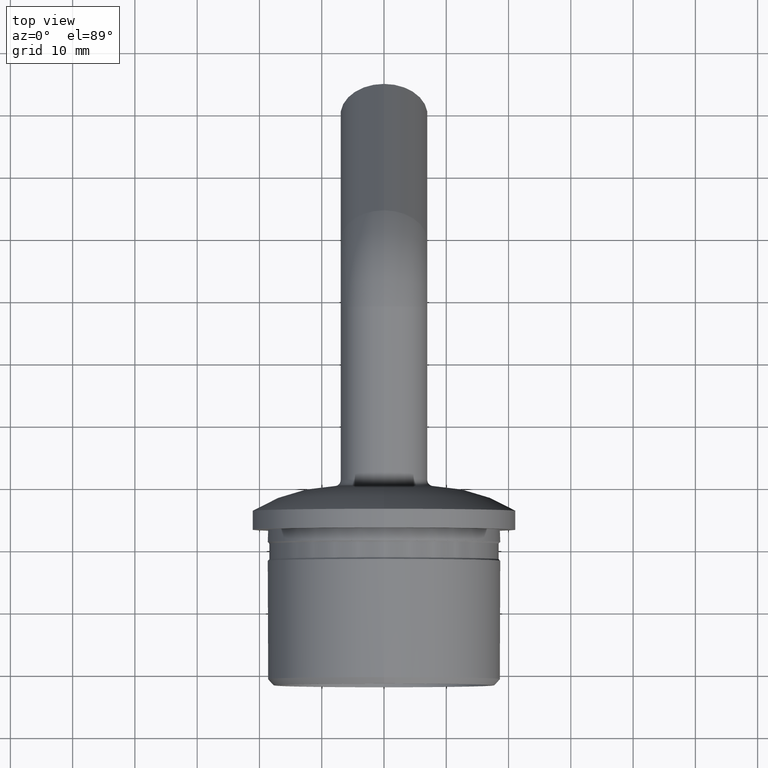
[diagram: clean part render]
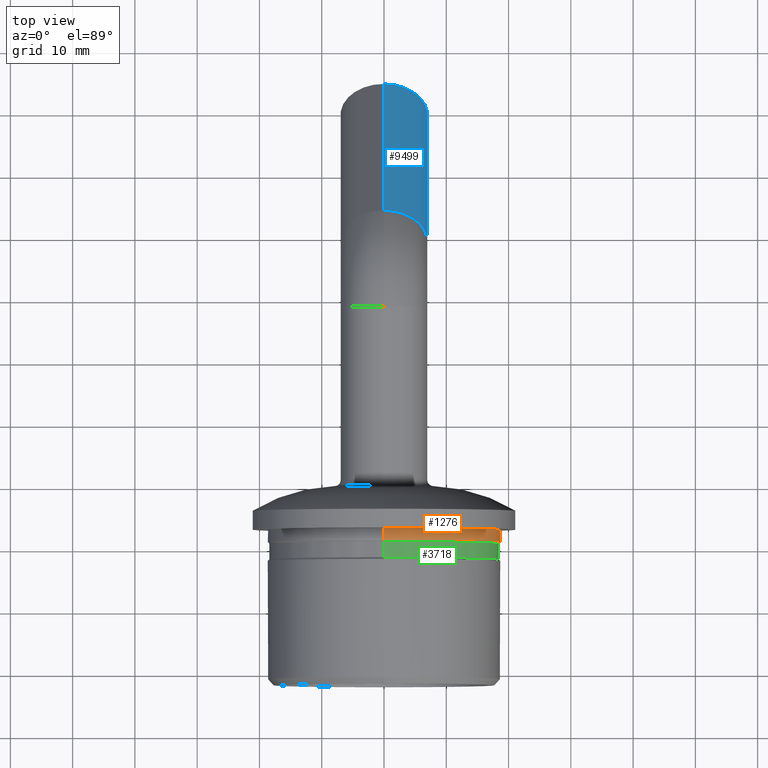
[diagram: same view with three faces highlighted in distinct colors, each labeled with its STEP entity id]
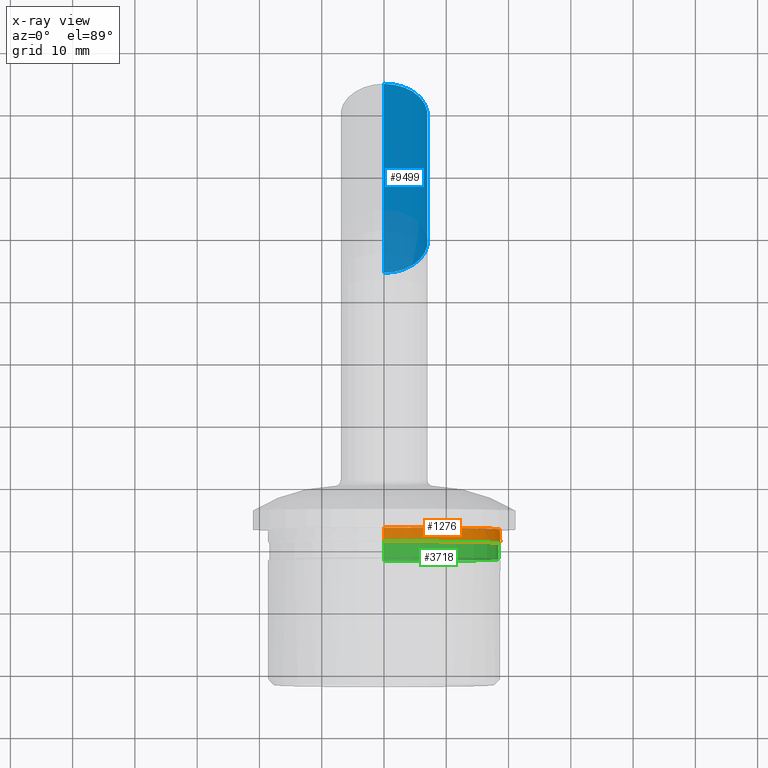
[diagram: x-ray of the same camera — body ghosted, the three highlighted faces saturated]
A machine part, top view with three faces highlighted in distinct colors.
The next image is the same camera in x-ray (body ghosted, the three faces saturated) — at least one of them is partly hidden behind the body in this view.
Their STEP definitions:

[orange] entity #1276 — the highlighted cylindrical surface (partial cylindrical patch) has radius 18.7 mm, axis along (-0, 1, 0).
#802 = DIRECTION ( 'NONE',  ( 0.000000000000000000, 9.276596128218218622E-17, 1.000000000000000000 ) ) ;
#906 = CARTESIAN_POINT ( 'NONE',  ( 0.000000000000000000, -8.999999999999992895, 4.723637653854072254E-16 ) ) ;
#1276 = ADVANCED_FACE ( 'NONE', ( #1738 ), #4572, .T. ) ;
#1674 = VERTEX_POINT ( 'NONE', #11366 ) ;
#1738 = FACE_OUTER_BOUND ( 'NONE', #9353, .T. ) ;
#1954 = DIRECTION ( 'NONE',  ( 0.000000000000000000, -1.391489419232733040E-16, 1.000000000000000000 ) ) ;
#2594 = CARTESIAN_POINT ( 'NONE',  ( 2.290089514405550505E-15, -32.00000000000000000, -18.70000000000000284 ) ) ;
#3051 = DIRECTION ( 'NONE',  ( 0.000000000000000000, -1.000000000000000000, -1.224646799147353207E-16 ) ) ;
#4394 = DIRECTION ( 'NONE',  ( -0.000000000000000000, 1.000000000000000000, -5.248486282060084733E-17 ) ) ;
#4440 = CARTESIAN_POINT ( 'NONE',  ( 0.000000000000000000, -7.000000000000001776, 18.69999999999999929 ) ) ;
#4572 = CYLINDRICAL_SURFACE ( 'NONE', #5643, 18.69999999999999929 ) ;
#4647 = CARTESIAN_POINT ( 'NONE',  ( 0.000000000000000000, -32.00000000000000000, -3.918869757271531052E-15 ) ) ;
#5008 = EDGE_CURVE ( 'NONE', #11975, #8966, #7193, .T. ) ;
#5343 = EDGE_CURVE ( 'NONE', #1674, #14453, #5846, .T. ) ;
#5442 = ORIENTED_EDGE ( 'NONE', *, *, #7865, .T. ) ;
#5643 = AXIS2_PLACEMENT_3D ( 'NONE', #4647, #14436, #9577 ) ;
#5846 = CIRCLE ( 'NONE', #9908, 18.69999999999999929 ) ;
#6888 = CARTESIAN_POINT ( 'NONE',  ( 2.290089514405550899E-15, -8.999999999999994671, -18.70000000000000284 ) ) ;
#7193 = CIRCLE ( 'NONE', #15183, 18.70000000000000284 ) ;
#7313 = CARTESIAN_POINT ( 'NONE',  ( 0.000000000000000000, -32.00000000000000000, 18.69999999999999574 ) ) ;
#7607 = ORIENTED_EDGE ( 'NONE', *, *, #5008, .T. ) ;
#7731 = ORIENTED_EDGE ( 'NONE', *, *, #5343, .T. ) ;
#7865 = EDGE_CURVE ( 'NONE', #8966, #1674, #13038, .T. ) ;
#8531 = ORIENTED_EDGE ( 'NONE', *, *, #13023, .F. ) ;
#8551 = CARTESIAN_POINT ( 'NONE',  ( 0.000000000000000000, -8.999999999999991118, 18.70000000000000284 ) ) ;
#8966 = VERTEX_POINT ( 'NONE', #6888 ) ;
#9353 = EDGE_LOOP ( 'NONE', ( #7607, #5442, #7731, #8531 ) ) ;
#9577 = DIRECTION ( 'NONE',  ( 0.000000000000000000, 0.000000000000000000, 1.000000000000000000 ) ) ;
#9843 = VECTOR ( 'NONE', #11325, 1000.000000000000000 ) ;
#9908 = AXIS2_PLACEMENT_3D ( 'NONE', #13911, #3051, #1954 ) ;
#11325 = DIRECTION ( 'NONE',  ( -0.000000000000000000, 1.000000000000000000, 1.224646799147353207E-16 ) ) ;
#11366 = CARTESIAN_POINT ( 'NONE',  ( 2.290089514405550505E-15, -6.999999999999996447, -18.69999999999999929 ) ) ;
#11975 = VERTEX_POINT ( 'NONE', #8551 ) ;
#12344 = VECTOR ( 'NONE', #14532, 1000.000000000000000 ) ;
#13023 = EDGE_CURVE ( 'NONE', #11975, #14453, #15298, .T. ) ;
#13038 = LINE ( 'NONE', #2594, #9843 ) ;
#13911 = CARTESIAN_POINT ( 'NONE',  ( 0.000000000000000000, -6.999999999999999112, -8.572527594031476148E-16 ) ) ;
#14436 = DIRECTION ( 'NONE',  ( -0.000000000000000000, 1.000000000000000000, 1.224646799147353207E-16 ) ) ;
#14453 = VERTEX_POINT ( 'NONE', #4440 ) ;
#14532 = DIRECTION ( 'NONE',  ( -0.000000000000000000, 1.000000000000000000, 1.224646799147353207E-16 ) ) ;
#15183 = AXIS2_PLACEMENT_3D ( 'NONE', #906, #4394, #802 ) ;
#15298 = LINE ( 'NONE', #7313, #12344 ) ;

[blue] entity #9499 — the highlighted cylindrical surface (partial cylindrical patch) has radius 7 mm, axis along (0, 0.7075, -0.7067).
#483 = AXIS2_PLACEMENT_3D ( 'NONE', #14244, #14582, #6233 ) ;
#1188 = DIRECTION ( 'NONE',  ( 0.000000000000000000, 0.7075471698113207086, -0.7066661181151887572 ) ) ;
#1342 = EDGE_LOOP ( 'NONE', ( #4230, #15786, #2095, #14649 ) ) ;
#1509 = CIRCLE ( 'NONE', #3820, 7.000000000000001776 ) ;
#1593 = VERTEX_POINT ( 'NONE', #2679 ) ;
#2095 = ORIENTED_EDGE ( 'NONE', *, *, #3798, .F. ) ;
#2679 = CARTESIAN_POINT ( 'NONE',  ( 8.572527594031473190E-16, 34.39572806762198809, -9.339622641509434331 ) ) ;
#3099 = FACE_OUTER_BOUND ( 'NONE', #1342, .T. ) ;
#3707 = CARTESIAN_POINT ( 'NONE',  ( 8.572527594031473190E-16, 55.05333717319363274, -29.97150848463718020 ) ) ;
#3710 = VERTEX_POINT ( 'NONE', #11627 ) ;
#3760 = CARTESIAN_POINT ( 'NONE',  ( 0.000000000000000000, 44.28905372123467288, 0.5660377358490172872 ) ) ;
#3798 = EDGE_CURVE ( 'NONE', #3710, #6212, #1509, .T. ) ;
#3820 = AXIS2_PLACEMENT_3D ( 'NONE', #10510, #5806, #14308 ) ;
#4230 = ORIENTED_EDGE ( 'NONE', *, *, #4681, .T. ) ;
#4681 = EDGE_CURVE ( 'NONE', #14762, #1593, #15217, .T. ) ;
#5749 = DIRECTION ( 'NONE',  ( 0.000000000000000000, 0.7075471698113208197, -0.7066661181151888682 ) ) ;
#5806 = DIRECTION ( 'NONE',  ( 0.000000000000000000, 0.7075471698113150465, -0.7066661181151946414 ) ) ;
#6005 = VECTOR ( 'NONE', #12153, 1000.000000000000114 ) ;
#6169 = EDGE_CURVE ( 'NONE', #14762, #3710, #8323, .T. ) ;
#6212 = VERTEX_POINT ( 'NONE', #3707 ) ;
#6233 = DIRECTION ( 'NONE',  ( 0.000000000000000000, 0.7066661181151947524, 0.7075471698113149355 ) ) ;
#6867 = CARTESIAN_POINT ( 'NONE',  ( 0.000000000000000000, 39.34239089442834825, -4.386792452830228228 ) ) ;
#6958 = EDGE_CURVE ( 'NONE', #1593, #6212, #8606, .T. ) ;
#7947 = DIRECTION ( 'NONE',  ( 0.000000000000000000, 0.7066661181151887572, 0.7075471698113208197 ) ) ;
#8323 = LINE ( 'NONE', #3760, #12129 ) ;
#8606 = LINE ( 'NONE', #9998, #6005 ) ;
#8830 = CYLINDRICAL_SURFACE ( 'NONE', #11636, 7.000000000000000888 ) ;
#9499 = ADVANCED_FACE ( 'NONE', ( #3099 ), #8830, .T. ) ;
#9525 = CARTESIAN_POINT ( 'NONE',  ( 0.000000000000000000, 44.28905372123471551, 0.5660377358489765420 ) ) ;
#9998 = CARTESIAN_POINT ( 'NONE',  ( 8.572527594031473190E-16, 34.39572806762202362, -9.339622641509475187 ) ) ;
#10510 = CARTESIAN_POINT ( 'NONE',  ( 0.000000000000000000, 60.00000000000000000, -25.01867829595797943 ) ) ;
#11627 = CARTESIAN_POINT ( 'NONE',  ( 0.000000000000000000, 64.94666282680636016, -20.06584810727877510 ) ) ;
#11636 = AXIS2_PLACEMENT_3D ( 'NONE', #6867, #5749, #7947 ) ;
#12129 = VECTOR ( 'NONE', #1188, 1000.000000000000114 ) ;
#12153 = DIRECTION ( 'NONE',  ( 0.000000000000000000, 0.7075471698113207086, -0.7066661181151887572 ) ) ;
#14244 = CARTESIAN_POINT ( 'NONE',  ( 0.000000000000000000, 39.34239089442834825, -4.386792452830228228 ) ) ;
#14308 = DIRECTION ( 'NONE',  ( 0.000000000000000000, 0.7066661181151946414, 0.7075471698113149355 ) ) ;
#14582 = DIRECTION ( 'NONE',  ( 0.000000000000000000, 0.7075471698113150465, -0.7066661181151946414 ) ) ;
#14649 = ORIENTED_EDGE ( 'NONE', *, *, #6169, .F. ) ;
#14762 = VERTEX_POINT ( 'NONE', #9525 ) ;
#15217 = CIRCLE ( 'NONE', #483, 7.000000000000000888 ) ;
#15786 = ORIENTED_EDGE ( 'NONE', *, *, #6958, .T. ) ;

[green] entity #3718 — the highlighted cylindrical surface (partial cylindrical patch) has radius 18.4 mm, axis along (-0, 1, -0).
#793 = AXIS2_PLACEMENT_3D ( 'NONE', #4196, #8063, #13949 ) ;
#859 = EDGE_CURVE ( 'NONE', #14953, #4255, #6694, .T. ) ;
#1288 = DIRECTION ( 'NONE',  ( 0.000000000000000000, -1.000000000000000000, 5.248486282060071175E-17 ) ) ;
#1315 = CARTESIAN_POINT ( 'NONE',  ( 0.000000000000000000, -9.249999999999969802, 18.39999999999999858 ) ) ;
#2409 = AXIS2_PLACEMENT_3D ( 'NONE', #10426, #6792, #3114 ) ;
#2527 = ORIENTED_EDGE ( 'NONE', *, *, #14501, .T. ) ;
#2543 = EDGE_CURVE ( 'NONE', #14953, #11548, #5139, .T. ) ;
#3114 = DIRECTION ( 'NONE',  ( 0.000000000000000000, 9.427844978134821433E-17, 1.000000000000000000 ) ) ;
#3433 = VECTOR ( 'NONE', #7094, 1000.000000000000000 ) ;
#3588 = CARTESIAN_POINT ( 'NONE',  ( 2.253350110431129645E-15, -11.74999999999996447, -18.39999999999999858 ) ) ;
#3718 = ADVANCED_FACE ( 'NONE', ( #12920 ), #7983, .T. ) ;
#4196 = CARTESIAN_POINT ( 'NONE',  ( 0.000000000000000000, 0.000000000000000000, 0.000000000000000000 ) ) ;
#4255 = VERTEX_POINT ( 'NONE', #1315 ) ;
#4382 = LINE ( 'NONE', #15284, #6493 ) ;
#5139 = CIRCLE ( 'NONE', #2409, 18.39999999999999858 ) ;
#5650 = CARTESIAN_POINT ( 'NONE',  ( 0.000000000000000000, 9.657214758990556748E-16, 18.39999999999999858 ) ) ;
#6493 = VECTOR ( 'NONE', #7977, 1000.000000000000000 ) ;
#6590 = ORIENTED_EDGE ( 'NONE', *, *, #7342, .T. ) ;
#6694 = LINE ( 'NONE', #5650, #3433 ) ;
#6792 = DIRECTION ( 'NONE',  ( -0.000000000000000000, 1.000000000000000000, -5.248486282060091513E-17 ) ) ;
#7089 = ORIENTED_EDGE ( 'NONE', *, *, #859, .F. ) ;
#7094 = DIRECTION ( 'NONE',  ( -0.000000000000000000, 1.000000000000000000, -5.248486282060084733E-17 ) ) ;
#7342 = EDGE_CURVE ( 'NONE', #13701, #4255, #13237, .T. ) ;
#7461 = CARTESIAN_POINT ( 'NONE',  ( 0.000000000000000000, -9.249999999999971578, 4.854849810905563633E-16 ) ) ;
#7754 = CARTESIAN_POINT ( 'NONE',  ( 0.000000000000000000, -11.74999999999996270, 18.39999999999999858 ) ) ;
#7977 = DIRECTION ( 'NONE',  ( -0.000000000000000000, 1.000000000000000000, -5.248486282060084733E-17 ) ) ;
#7983 = CYLINDRICAL_SURFACE ( 'NONE', #793, 18.39999999999999858 ) ;
#8063 = DIRECTION ( 'NONE',  ( -0.000000000000000000, 1.000000000000000000, -5.248486282060084733E-17 ) ) ;
#10426 = CARTESIAN_POINT ( 'NONE',  ( 0.000000000000000000, -11.74999999999996447, 6.166971381420579979E-16 ) ) ;
#11271 = EDGE_LOOP ( 'NONE', ( #13231, #2527, #6590, #7089 ) ) ;
#11548 = VERTEX_POINT ( 'NONE', #3588 ) ;
#12393 = DIRECTION ( 'NONE',  ( 0.000000000000000000, -9.427844978134821433E-17, -1.000000000000000000 ) ) ;
#12529 = AXIS2_PLACEMENT_3D ( 'NONE', #7461, #1288, #12393 ) ;
#12920 = FACE_OUTER_BOUND ( 'NONE', #11271, .T. ) ;
#13231 = ORIENTED_EDGE ( 'NONE', *, *, #2543, .T. ) ;
#13237 = CIRCLE ( 'NONE', #12529, 18.39999999999999858 ) ;
#13701 = VERTEX_POINT ( 'NONE', #15651 ) ;
#13949 = DIRECTION ( 'NONE',  ( 0.000000000000000000, 5.248486282060085350E-17, 1.000000000000000000 ) ) ;
#14501 = EDGE_CURVE ( 'NONE', #11548, #13701, #4382, .T. ) ;
#14953 = VERTEX_POINT ( 'NONE', #7754 ) ;
#15284 = CARTESIAN_POINT ( 'NONE',  ( 2.253350110431129645E-15, -9.657214758990556748E-16, -18.39999999999999858 ) ) ;
#15651 = CARTESIAN_POINT ( 'NONE',  ( 2.253350110431129645E-15, -9.249999999999973355, -18.39999999999999858 ) ) ;